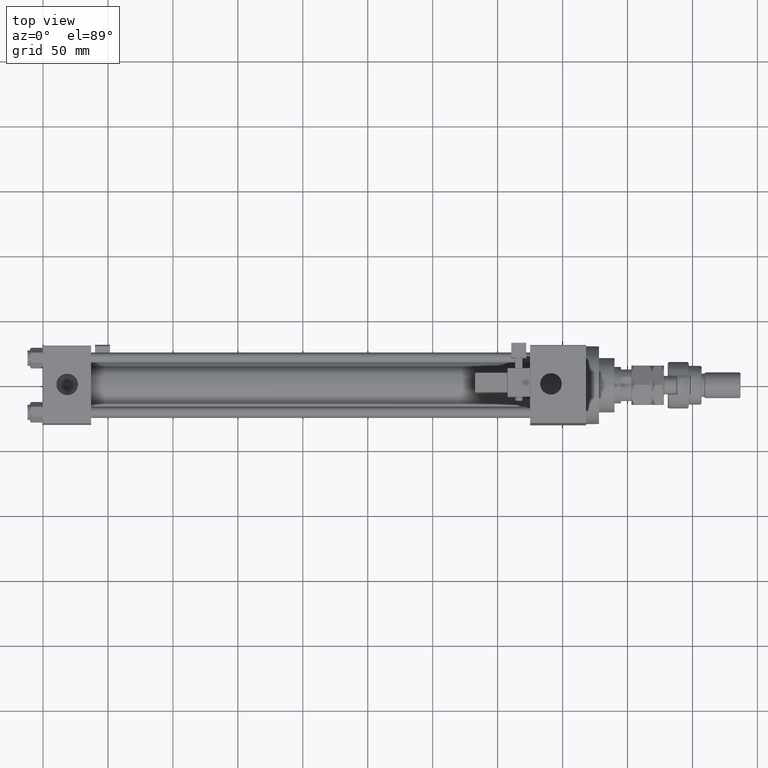
[diagram: clean part render]
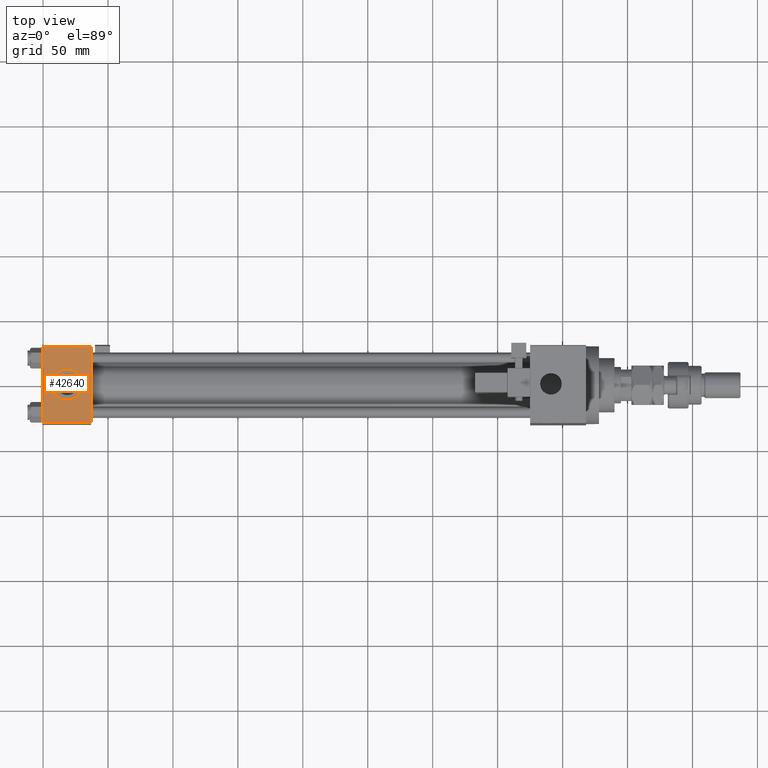
[diagram: same view with one face highlighted and labeled with its STEP entity id]
A machine part, top view. The second image highlights one B-rep face of the part: STEP entity #42640.
In plain terms, the highlighted planar face has unit normal (0, 0, -1).
Its self-contained STEP definition (entity closure, byte-faithful):
#636 = VERTEX_POINT ( 'NONE', #2762 ) ;
#660 = ORIENTED_EDGE ( 'NONE', *, *, #30464, .T. ) ;
#1093 = VERTEX_POINT ( 'NONE', #22751 ) ;
#1592 = DIRECTION ( 'NONE',  ( 0.000000000000000000, 0.000000000000000000, 1.000000000000000000 ) ) ;
#1707 = VECTOR ( 'NONE', #16670, 1000.000000000000000 ) ;
#2762 = CARTESIAN_POINT ( 'NONE',  ( 0.000000000000000000, 29.49999999999999289, 30.00000000000000000 ) ) ;
#3254 = VECTOR ( 'NONE', #43713, 1000.000000000000000 ) ;
#4945 = CIRCLE ( 'NONE', #34625, 12.00000000000000000 ) ;
#4960 = VERTEX_POINT ( 'NONE', #40915 ) ;
#5167 = EDGE_LOOP ( 'NONE', ( #40528, #21484 ) ) ;
#6301 = PLANE ( 'NONE',  #17668 ) ;
#8476 = CARTESIAN_POINT ( 'NONE',  ( 0.000000000000000000, 29.49999999999999289, 30.00000000000000000 ) ) ;
#10061 = VERTEX_POINT ( 'NONE', #43811 ) ;
#11192 = CARTESIAN_POINT ( 'NONE',  ( 30.50000000000000000, -3.469446951953614978E-15, 29.99999999999999645 ) ) ;
#12031 = CARTESIAN_POINT ( 'NONE',  ( 6.499999999999997335, -1.999870792976790833E-15, 29.99999999999999645 ) ) ;
#13738 = DIRECTION ( 'NONE',  ( 0.000000000000000000, 1.000000000000000000, 1.156482317317871725E-16 ) ) ;
#13800 = DIRECTION ( 'NONE',  ( 1.000000000000000000, 0.000000000000000000, 0.000000000000000000 ) ) ;
#14420 = DIRECTION ( 'NONE',  ( 1.000000000000000000, 0.000000000000000000, 0.000000000000000000 ) ) ;
#16670 = DIRECTION ( 'NONE',  ( -1.000000000000000000, 0.000000000000000000, 0.000000000000000000 ) ) ;
#17397 = CARTESIAN_POINT ( 'NONE',  ( 37.00000000000000000, 29.99999999999999289, 30.00000000000000000 ) ) ;
#17452 = DIRECTION ( 'NONE',  ( 0.000000000000000000, 1.156482317317871725E-16, -1.000000000000000000 ) ) ;
#17668 = AXIS2_PLACEMENT_3D ( 'NONE', #42688, #17452, #13738 ) ;
#18865 = EDGE_LOOP ( 'NONE', ( #27622, #660, #50149, #47781 ) ) ;
#20830 = CARTESIAN_POINT ( 'NONE',  ( 0.000000000000000000, 29.99999999999999289, 30.00000000000000000 ) ) ;
#21379 = LINE ( 'NONE', #17397, #51503 ) ;
#21438 = FACE_BOUND ( 'NONE', #5167, .T. ) ;
#21484 = ORIENTED_EDGE ( 'NONE', *, *, #42367, .F. ) ;
#21623 = LINE ( 'NONE', #20830, #36260 ) ;
#21759 = CARTESIAN_POINT ( 'NONE',  ( 18.50000000000000000, -3.469446951953614978E-15, 29.99999999999999645 ) ) ;
#22751 = CARTESIAN_POINT ( 'NONE',  ( 37.00000000000000000, -29.49999999999998579, 29.99999999999999289 ) ) ;
#27531 = EDGE_CURVE ( 'NONE', #4960, #1093, #21379, .T. ) ;
#27622 = ORIENTED_EDGE ( 'NONE', *, *, #28170, .T. ) ;
#28170 = EDGE_CURVE ( 'NONE', #636, #10061, #21623, .T. ) ;
#28328 = DIRECTION ( 'NONE',  ( 0.000000000000000000, -1.000000000000000000, -1.156482317317871725E-16 ) ) ;
#28744 = CIRCLE ( 'NONE', #44038, 12.00000000000000000 ) ;
#30464 = EDGE_CURVE ( 'NONE', #10061, #1093, #31207, .T. ) ;
#30742 = EDGE_CURVE ( 'NONE', #51464, #40752, #28744, .T. ) ;
#31207 = LINE ( 'NONE', #43181, #3254 ) ;
#33075 = DIRECTION ( 'NONE',  ( 0.000000000000000000, -1.000000000000000000, -1.156482317317871725E-16 ) ) ;
#33148 = LINE ( 'NONE', #8476, #1707 ) ;
#34493 = EDGE_CURVE ( 'NONE', #4960, #636, #33148, .T. ) ;
#34618 = CARTESIAN_POINT ( 'NONE',  ( 18.50000000000000000, -3.469446951953614978E-15, 29.99999999999999645 ) ) ;
#34625 = AXIS2_PLACEMENT_3D ( 'NONE', #21759, #1592, #13800 ) ;
#36260 = VECTOR ( 'NONE', #33075, 1000.000000000000000 ) ;
#38178 = FACE_OUTER_BOUND ( 'NONE', #18865, .T. ) ;
#40528 = ORIENTED_EDGE ( 'NONE', *, *, #30742, .F. ) ;
#40752 = VERTEX_POINT ( 'NONE', #12031 ) ;
#40915 = CARTESIAN_POINT ( 'NONE',  ( 37.00000000000000000, 29.49999999999999289, 30.00000000000000000 ) ) ;
#42367 = EDGE_CURVE ( 'NONE', #40752, #51464, #4945, .T. ) ;
#42640 = ADVANCED_FACE ( 'NONE', ( #21438, #38178 ), #6301, .F. ) ;
#42688 = CARTESIAN_POINT ( 'NONE',  ( 37.00000000000000000, 29.99999999999999289, 30.00000000000000000 ) ) ;
#43181 = CARTESIAN_POINT ( 'NONE',  ( 37.00000000000000000, -29.50000000000000000, 29.99999999999999289 ) ) ;
#43713 = DIRECTION ( 'NONE',  ( 1.000000000000000000, 0.000000000000000000, 0.000000000000000000 ) ) ;
#43811 = CARTESIAN_POINT ( 'NONE',  ( 0.000000000000000000, -29.49999999999998579, 29.99999999999999289 ) ) ;
#44038 = AXIS2_PLACEMENT_3D ( 'NONE', #34618, #50848, #14420 ) ;
#47781 = ORIENTED_EDGE ( 'NONE', *, *, #34493, .T. ) ;
#50149 = ORIENTED_EDGE ( 'NONE', *, *, #27531, .F. ) ;
#50848 = DIRECTION ( 'NONE',  ( 0.000000000000000000, 0.000000000000000000, 1.000000000000000000 ) ) ;
#51464 = VERTEX_POINT ( 'NONE', #11192 ) ;
#51503 = VECTOR ( 'NONE', #28328, 1000.000000000000000 ) ;